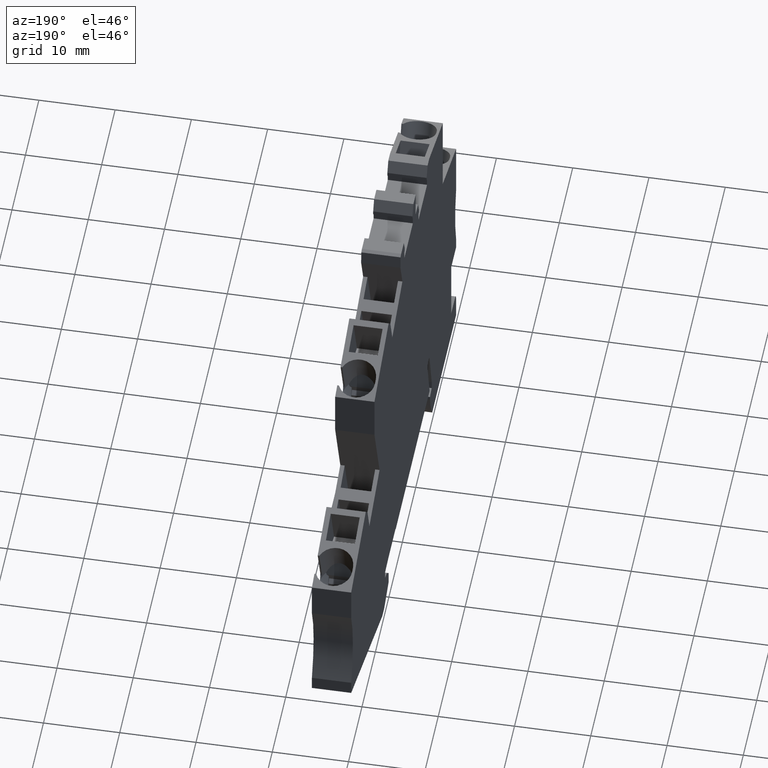
[diagram: clean part render]
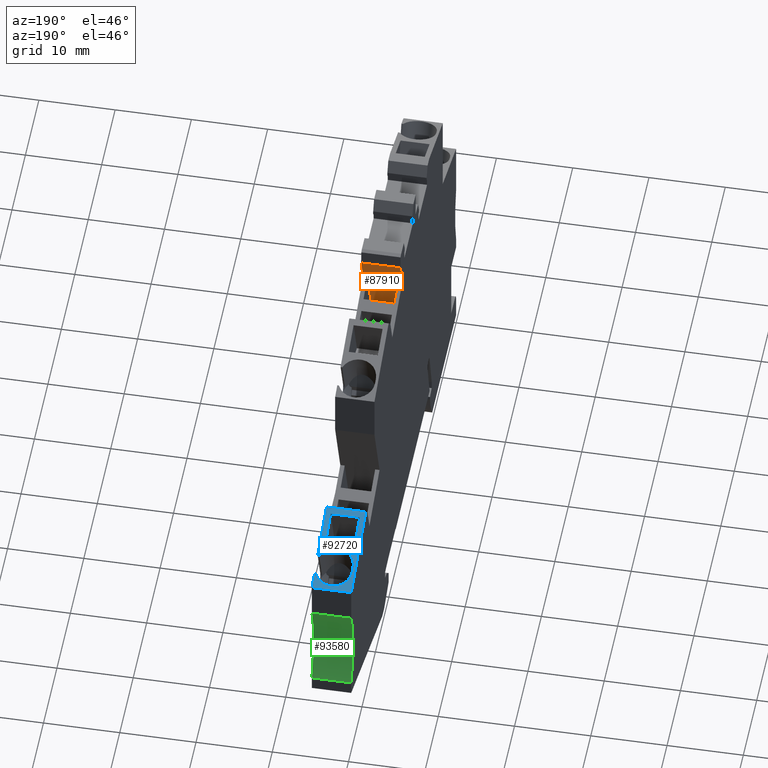
[diagram: same view with three faces highlighted in distinct colors, each labeled with its STEP entity id]
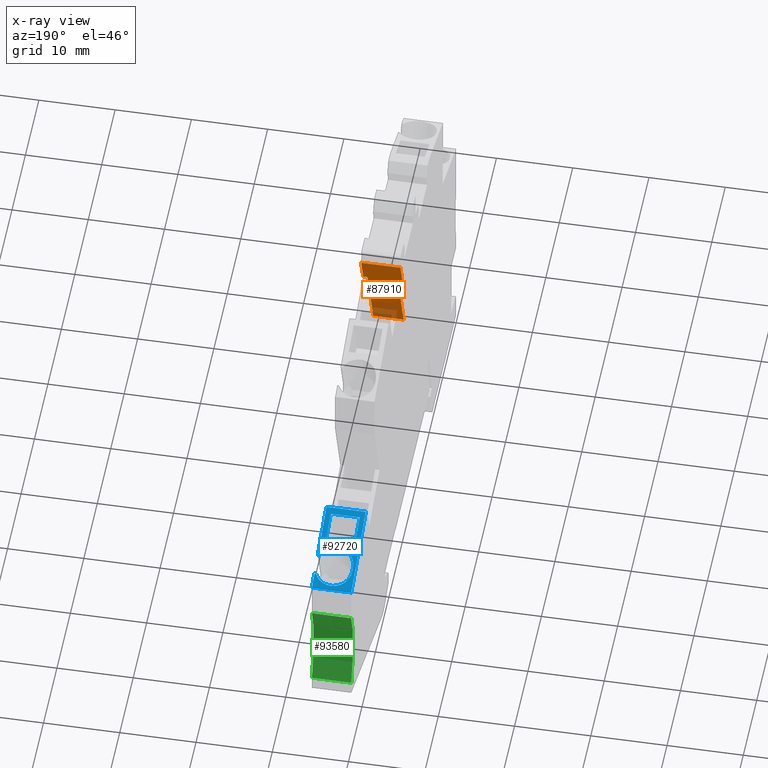
[diagram: x-ray of the same camera — body ghosted, the three highlighted faces saturated]
A machine part, auxiliary view with three faces highlighted in distinct colors.
The next image is the same camera in x-ray (body ghosted, the three faces saturated) — at least one of them is partly hidden behind the body in this view.
Their STEP definitions:

[orange] entity #87910 — the highlighted planar face has unit normal (0, -0.9397, 0.342).
#3790=CARTESIAN_POINT('',(106.746413690497,-12.7977566612392,
48.7600000000295));
#3800=VERTEX_POINT('',#3790);
#3830=CARTESIAN_POINT('',(97.427959184747,-38.4000000000014,
48.7600000000302));
#3840=DIRECTION('',(0.342020143325676,0.939692620785906,
-2.48217515694062E-14));
#3850=VECTOR('',#3840,1.);
#3860=LINE('',#3830,#3850);
#3870=CARTESIAN_POINT('',(108.217100306754,-8.75707839197852,
48.7600000000294));
#3880=VERTEX_POINT('',#3870);
#3890=EDGE_CURVE('',#3800,#3880,#3860,.T.);
#7540=CARTESIAN_POINT('',(108.217100306754,-8.75707839197847,
53.910000000027));
#7550=VERTEX_POINT('',#7540);
#7580=CARTESIAN_POINT('',(97.4279591847472,-38.4000000000014,
53.9100000000278));
#7590=DIRECTION('',(0.342020143325676,0.939692620785906,
-2.48217515694062E-14));
#7600=VECTOR('',#7590,1.);
#7610=LINE('',#7580,#7600);
#7620=CARTESIAN_POINT('',(106.746413690497,-12.7977566612392,
53.9100000000271));
#7630=VERTEX_POINT('',#7620);
#7640=EDGE_CURVE('',#7630,#7550,#7610,.T.);
#87290=CARTESIAN_POINT('',(108.217100306754,-8.75707839197851,
48.7600000000294));
#87300=DIRECTION('',(4.8531042333675E-14,8.75090144671021E-15,1.));
#87310=VECTOR('',#87300,1.);
#87320=LINE('',#87290,#87310);
#87330=EDGE_CURVE('',#3880,#7550,#87320,.T.);
#87470=CARTESIAN_POINT('',(106.746413690497,-12.7977566612392,
48.7600000000295));
#87480=DIRECTION('',(-0.939692620785906,0.342020143325676,
4.26112777929701E-14));
#87490=DIRECTION('',(-0.342020143325676,-0.939692620785906,
2.48217515694062E-14));
#87500=AXIS2_PLACEMENT_3D('',#87470,#87480,#87490);
#87510=PLANE('',#87500);
#87520=ORIENTED_EDGE('',*,*,#3890,.T.);
#87530=CARTESIAN_POINT('',(106.746413690497,-12.7977566612392,
48.7600000000295));
#87540=DIRECTION('',(4.8531042333675E-14,8.75090144671021E-15,1.));
#87550=VECTOR('',#87540,1.);
#87560=LINE('',#87530,#87550);
#87570=CARTESIAN_POINT('',(106.746413690497,-12.7977566612392,
49.3350000000293));
#87580=VERTEX_POINT('',#87570);
#87590=EDGE_CURVE('',#3800,#87580,#87560,.T.);
#87600=ORIENTED_EDGE('',*,*,#87590,.F.);
#87610=CARTESIAN_POINT('',(102.574177802359,-24.2608805525352,
49.3350000000293));
#87620=DIRECTION('',(0.342020143325669,0.939692620785908,
-3.25333614540689E-16));
#87630=VECTOR('',#87620,1.);
#87640=LINE('',#87610,#87630);
#87650=CARTESIAN_POINT('',(102.574177802359,-24.2608805525352,
49.3350000000293));
#87660=VERTEX_POINT('',#87650);
#87670=EDGE_CURVE('',#87660,#87580,#87640,.T.);
#87680=ORIENTED_EDGE('',*,*,#87670,.T.);
#87690=CARTESIAN_POINT('',(102.574177802359,-24.2608805525352,
53.3350000000294));
#87700=DIRECTION('',(3.10497673001137E-16,-4.59224712014783E-16,-1.));
#87710=VECTOR('',#87700,1.);
#87720=LINE('',#87690,#87710);
#87730=CARTESIAN_POINT('',(102.574177802359,-24.2608805525352,
53.3350000000294));
#87740=VERTEX_POINT('',#87730);
#87750=EDGE_CURVE('',#87740,#87660,#87720,.T.);
#87760=ORIENTED_EDGE('',*,*,#87750,.T.);
#87770=CARTESIAN_POINT('',(102.574177802359,-24.2608805525352,
53.3350000000294));
#87780=DIRECTION('',(0.342020143325669,0.939692620785908,
-3.25333614540689E-16));
#87790=VECTOR('',#87780,1.);
#87800=LINE('',#87770,#87790);
#87810=CARTESIAN_POINT('',(106.746413690497,-12.7977566612392,
53.3350000000293));
#87820=VERTEX_POINT('',#87810);
#87830=EDGE_CURVE('',#87740,#87820,#87800,.T.);
#87840=ORIENTED_EDGE('',*,*,#87830,.F.);
#87850=EDGE_CURVE('',#87820,#7630,#87560,.T.);
#87860=ORIENTED_EDGE('',*,*,#87850,.F.);
#87870=ORIENTED_EDGE('',*,*,#7640,.F.);
#87880=ORIENTED_EDGE('',*,*,#87330,.T.);
#87890=EDGE_LOOP('',(#87880,#87870,#87860,#87840,#87760,#87680,#87600,
#87520));
#87900=FACE_OUTER_BOUND('',#87890,.T.);
#87910=ADVANCED_FACE('',(#87900),#87510,.F.);

[blue] entity #92720 — the highlighted planar face has unit normal (-0, -0.342, -0.9397).
#2990=CARTESIAN_POINT('',(144.832167221676,-31.7902490553593,
48.7600000000279));
#3000=VERTEX_POINT('',#2990);
#3030=CARTESIAN_POINT('',(101.113826887599,-15.8780744822292,
48.7600000000298));
#3040=DIRECTION('',(-0.939692620785863,0.342020143325795,
4.26112777929669E-14));
#3050=VECTOR('',#3040,1.);
#3060=LINE('',#3030,#3050);
#3070=CARTESIAN_POINT('',(133.991244400932,-27.8444758366296,
48.7600000000284));
#3080=VERTEX_POINT('',#3070);
#3090=EDGE_CURVE('',#3000,#3080,#3060,.T.);
#8840=CARTESIAN_POINT('',(133.991244400932,-27.8444758366296,
53.9100000000259));
#8850=VERTEX_POINT('',#8840);
#8880=CARTESIAN_POINT('',(101.113826887599,-15.8780744822291,
53.9100000000274));
#8890=DIRECTION('',(-0.939692620785863,0.342020143325795,
4.26112777929669E-14));
#8900=VECTOR('',#8890,1.);
#8910=LINE('',#8880,#8900);
#8920=CARTESIAN_POINT('',(140.528216381219,-30.2237390596874,
53.9100000000256));
#8930=VERTEX_POINT('',#8920);
#8940=EDGE_CURVE('',#8930,#8850,#8910,.T.);
#9340=CARTESIAN_POINT('',(142.971417195263,-31.1129914323345,
53.9100000000255));
#9350=VERTEX_POINT('',#9340);
#9380=CARTESIAN_POINT('',(101.113826887599,-15.8780744822291,
53.9100000000274));
#9390=DIRECTION('',(-0.939692620785863,0.342020143325795,
4.26112777929669E-14));
#9400=VECTOR('',#9390,1.);
#9410=LINE('',#9380,#9400);
#9420=CARTESIAN_POINT('',(144.832167221676,-31.7902490553592,
53.9100000000254));
#9430=VERTEX_POINT('',#9420);
#9440=EDGE_CURVE('',#9430,#9350,#9410,.T.);
#26810=CARTESIAN_POINT('',(142.971417195263,-31.1129914323346,
48.760000000028));
#26820=DIRECTION('',(8.48953902933879E-15,2.33248167847664E-14,1.));
#26830=VECTOR('',#26820,1.);
#26840=LINE('',#26810,#26830);
#26850=CARTESIAN_POINT('',(142.971417195263,-31.1129914323335,
53.6917424229563));
#26860=VERTEX_POINT('',#26850);
#26870=EDGE_CURVE('',#26860,#9350,#26840,.T.);
#28310=CARTESIAN_POINT('',(142.031724574476,-30.7709712890086,
49.1100000000294));
#28320=VERTEX_POINT('',#28310);
#28350=CARTESIAN_POINT('',(142.031724574476,-30.7709712890086,
51.5100000000294));
#28360=DIRECTION('',(0.342020143324751,0.939692620786242,0.));
#28370=DIRECTION('',(0.939692620786242,-0.342020143324751,0.));
#28380=AXIS2_PLACEMENT_3D('',#28350,#28360,#28370);
#28390=CIRCLE('',#28380,2.4);
#28400=EDGE_CURVE('',#26860,#28320,#28390,.T.);
#37120=CARTESIAN_POINT('',(141.467909002005,-30.5657592030132,
49.1100000000294));
#37130=VERTEX_POINT('',#37120);
#38200=CARTESIAN_POINT('',(140.528216381219,-30.2237390596886,
53.6917424229565));
#38210=VERTEX_POINT('',#38200);
#38240=CARTESIAN_POINT('',(141.467909002005,-30.5657592030132,
51.5100000000294));
#38250=DIRECTION('',(-0.342020143324641,-0.939692620786283,
3.15544362088405E-30));
#38260=DIRECTION('',(0.939692620786283,-0.342020143324641,
6.31088724176809E-30));
#38270=AXIS2_PLACEMENT_3D('',#38240,#38250,#38260);
#38280=CIRCLE('',#38270,2.4);
#38290=EDGE_CURVE('',#38210,#37130,#38280,.T.);
#38840=CARTESIAN_POINT('',(101.113826887599,-15.8780744822292,
49.1100000000293));
#38850=DIRECTION('',(0.939692620785863,-0.342020143325795,
7.15175743029791E-16));
#38860=VECTOR('',#38850,1.);
#38870=LINE('',#38840,#38860);
#38880=EDGE_CURVE('',#37130,#28320,#38870,.T.);
#39520=CARTESIAN_POINT('',(140.528216381219,-30.2237390596875,
48.7600000000281));
#39530=DIRECTION('',(-8.48953902933879E-15,-2.33248167847664E-14,-1.));
#39540=VECTOR('',#39530,1.);
#39550=LINE('',#39520,#39540);
#39560=EDGE_CURVE('',#8930,#38210,#39550,.T.);
#66630=CARTESIAN_POINT('',(138.390415884801,-29.4456433121915,
53.2100000000293));
#66640=VERTEX_POINT('',#66630);
#66670=CARTESIAN_POINT('',(101.113826887599,-15.8780744822291,
53.2100000000293));
#66680=DIRECTION('',(0.939692620785863,-0.342020143325795,
-6.46922297656115E-18));
#66690=VECTOR('',#66680,1.);
#66700=LINE('',#66670,#66690);
#66710=CARTESIAN_POINT('',(134.819583709944,-28.1459666889827,
53.2100000000293));
#66720=VERTEX_POINT('',#66710);
#66730=EDGE_CURVE('',#66720,#66640,#66700,.T.);
#77660=CARTESIAN_POINT('',(134.819583709944,-28.1459666889828,
49.4100000000249));
#77670=VERTEX_POINT('',#77660);
#77700=CARTESIAN_POINT('',(101.113826887599,-15.8780744822292,
49.4100000000236));
#77710=DIRECTION('',(-0.939692620785863,0.342020143325795,
-3.46880002965596E-14));
#77720=VECTOR('',#77710,1.);
#77730=LINE('',#77700,#77720);
#77740=CARTESIAN_POINT('',(138.390415884802,-29.4456433121916,
49.410000000025));
#77750=VERTEX_POINT('',#77740);
#77760=EDGE_CURVE('',#77750,#77670,#77730,.T.);
#78250=CARTESIAN_POINT('',(138.390415884802,-29.4456433121916,
48.7600000000282));
#78260=DIRECTION('',(-2.40903665183594E-14,3.51829326393378E-14,1.));
#78270=VECTOR('',#78260,1.);
#78280=LINE('',#78250,#78270);
#78290=EDGE_CURVE('',#77750,#66640,#78280,.T.);
#92010=CARTESIAN_POINT('',(133.991244400932,-27.8444758366296,
48.7600000000284));
#92020=DIRECTION('',(-4.8531042333675E-14,-8.75090144671021E-15,-1.));
#92030=VECTOR('',#92020,1.);
#92040=LINE('',#92010,#92030);
#92050=EDGE_CURVE('',#8850,#3080,#92040,.T.);
#92390=CARTESIAN_POINT('',(144.700571250341,-31.742352038844,
48.7600000000279));
#92400=DIRECTION('',(-0.342020143325795,-0.939692620785863,
2.48217515694116E-14));
#92410=DIRECTION('',(0.939692620785863,-0.342020143325795,
-4.26112777929669E-14));
#92420=AXIS2_PLACEMENT_3D('',#92390,#92400,#92410);
#92430=PLANE('',#92420);
#92440=ORIENTED_EDGE('',*,*,#78290,.T.);
#92450=ORIENTED_EDGE('',*,*,#77760,.F.);
#92460=CARTESIAN_POINT('',(134.819583709944,-28.1459666889829,
48.7600000000283));
#92470=DIRECTION('',(2.40903665183596E-14,-3.51829326393379E-14,-1.));
#92480=VECTOR('',#92470,1.);
#92490=LINE('',#92460,#92480);
#92500=EDGE_CURVE('',#66720,#77670,#92490,.T.);
#92510=ORIENTED_EDGE('',*,*,#92500,.T.);
#92520=ORIENTED_EDGE('',*,*,#66730,.F.);
#92530=EDGE_LOOP('',(#92520,#92510,#92450,#92440));
#92540=FACE_BOUND('',#92530,.T.);
#92550=ORIENTED_EDGE('',*,*,#3090,.T.);
#92560=CARTESIAN_POINT('',(144.832167221676,-31.7902490553593,
48.7600000000279));
#92570=DIRECTION('',(-4.8531042333675E-14,-8.75090144671021E-15,-1.));
#92580=VECTOR('',#92570,1.);
#92590=LINE('',#92560,#92580);
#92600=EDGE_CURVE('',#9430,#3000,#92590,.T.);
#92610=ORIENTED_EDGE('',*,*,#92600,.T.);
#92620=ORIENTED_EDGE('',*,*,#9440,.F.);
#92630=ORIENTED_EDGE('',*,*,#26870,.T.);
#92640=ORIENTED_EDGE('',*,*,#28400,.F.);
#92650=ORIENTED_EDGE('',*,*,#38880,.T.);
#92660=ORIENTED_EDGE('',*,*,#38290,.T.);
#92670=ORIENTED_EDGE('',*,*,#39560,.T.);
#92680=ORIENTED_EDGE('',*,*,#8940,.F.);
#92690=ORIENTED_EDGE('',*,*,#92050,.F.);
#92700=EDGE_LOOP('',(#92690,#92680,#92670,#92660,#92650,#92640,#92630,
#92620,#92610,#92550));
#92710=FACE_OUTER_BOUND('',#92700,.T.);
#92720=ADVANCED_FACE('',(#92540,#92710),#92430,.F.);

[green] entity #93580 — the highlighted cylindrical surface (partial cylindrical patch) has radius 15 mm, axis along (-1, 0, 0).
#2820=CARTESIAN_POINT('',(144.832167236373,-48.5567510033959,
48.760000000028));
#2830=VERTEX_POINT('',#2820);
#2860=CARTESIAN_POINT('',(158.57989432124,-42.5567510033957,
48.7600000000273));
#2870=DIRECTION('',(-4.8531042333675E-14,-8.75090144671021E-15,-1.));
#2880=DIRECTION('',(-1.,0.,4.8531042333675E-14));
#2890=AXIS2_PLACEMENT_3D('',#2860,#2870,#2880);
#2900=CIRCLE('',#2890,15.);
#2910=CARTESIAN_POINT('',(144.832167221676,-36.5567510370718,
48.7600000000279));
#2920=VERTEX_POINT('',#2910);
#2930=EDGE_CURVE('',#2830,#2920,#2900,.T.);
#9500=CARTESIAN_POINT('',(144.832167221676,-36.5567510370717,
53.9100000000255));
#9510=VERTEX_POINT('',#9500);
#9540=CARTESIAN_POINT('',(158.579894321241,-42.5567510033957,
53.9100000000249));
#9550=DIRECTION('',(-4.8531042333675E-14,-8.75090144671021E-15,-1.));
#9560=DIRECTION('',(-1.,0.,4.8531042333675E-14));
#9570=AXIS2_PLACEMENT_3D('',#9540,#9550,#9560);
#9580=CIRCLE('',#9570,15.);
#9590=CARTESIAN_POINT('',(144.832167236373,-48.5567510033958,
53.9100000000256));
#9600=VERTEX_POINT('',#9590);
#9610=EDGE_CURVE('',#9600,#9510,#9580,.T.);
#93050=CARTESIAN_POINT('',(144.832167221676,-36.5567510370718,
48.7600000000279));
#93060=DIRECTION('',(-4.8531042333675E-14,-8.75090144671021E-15,-1.));
#93070=VECTOR('',#93060,1.);
#93080=LINE('',#93050,#93070);
#93090=EDGE_CURVE('',#9510,#2920,#93080,.T.);
#93420=CARTESIAN_POINT('',(158.57989432124,-42.5567510033957,
48.7600000000273));
#93430=DIRECTION('',(-4.8531042333675E-14,-8.75090144671021E-15,-1.));
#93440=DIRECTION('',(-1.,0.,4.8531042333675E-14));
#93450=AXIS2_PLACEMENT_3D('',#93420,#93430,#93440);
#93460=CYLINDRICAL_SURFACE('',#93450,15.);
#93470=CARTESIAN_POINT('',(144.832167236373,-48.5567510033959,
48.760000000028));
#93480=DIRECTION('',(-4.8531042333675E-14,-8.75090144671021E-15,-1.));
#93490=VECTOR('',#93480,1.);
#93500=LINE('',#93470,#93490);
#93510=EDGE_CURVE('',#9600,#2830,#93500,.T.);
#93520=ORIENTED_EDGE('',*,*,#93510,.T.);
#93530=ORIENTED_EDGE('',*,*,#9610,.F.);
#93540=ORIENTED_EDGE('',*,*,#93090,.F.);
#93550=ORIENTED_EDGE('',*,*,#2930,.T.);
#93560=EDGE_LOOP('',(#93550,#93540,#93530,#93520));
#93570=FACE_OUTER_BOUND('',#93560,.T.);
#93580=ADVANCED_FACE('',(#93570),#93460,.F.);